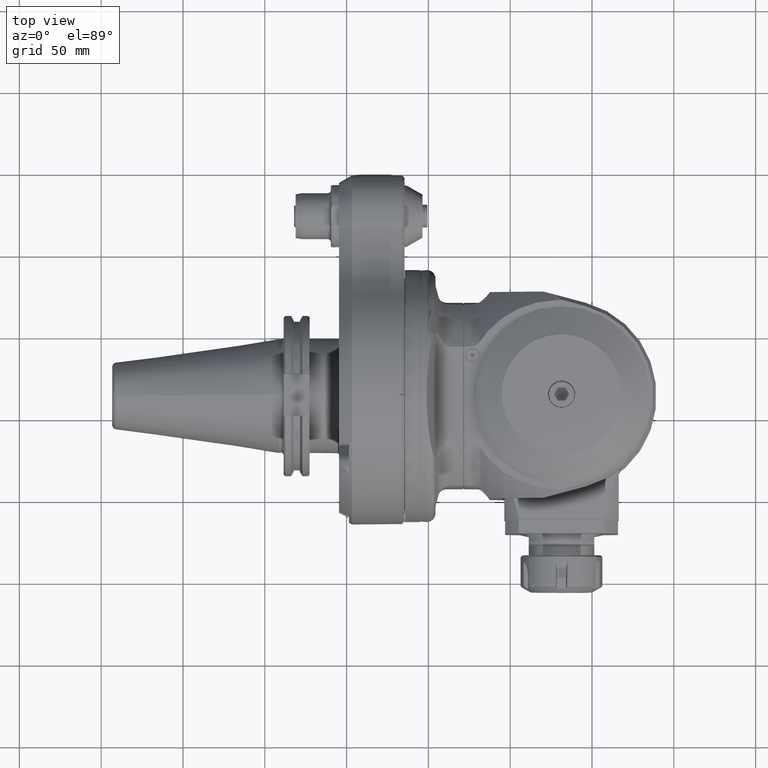
[diagram: clean part render]
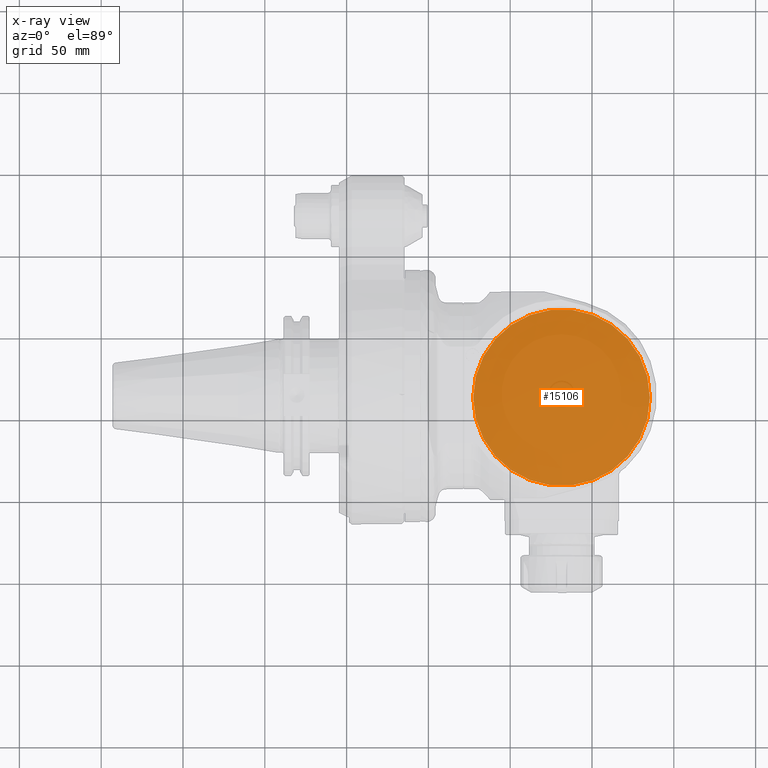
[diagram: x-ray — body ghosted, one internal face saturated and labeled with its STEP entity id]
A machine part, top view, then the same camera in x-ray: the body is ghosted and one INTERNAL B-rep face — a face not visible from any outside direction — is saturated and labeled: STEP entity #15106.
In plain terms, the highlighted planar face has unit normal (-0, 0, -1).
Its self-contained STEP definition (entity closure, byte-faithful):
#1091=PLANE('',#16673);
#1867=FACE_OUTER_BOUND('',#2828,.T.);
#2828=EDGE_LOOP('',(#12907));
#5823=CIRCLE('',#16661,54.);
#7055=VERTEX_POINT('',#39872);
#9081=EDGE_CURVE('',#7055,#7055,#5823,.T.);
#12907=ORIENTED_EDGE('',*,*,#9081,.T.);
#15106=ADVANCED_FACE('',(#1867),#1091,.T.);
#16661=AXIS2_PLACEMENT_3D('',#39873,#20261,#20262);
#16673=AXIS2_PLACEMENT_3D('',#39886,#20286,#20287);
#20261=DIRECTION('center_axis',(0.,1.,0.));
#20262=DIRECTION('ref_axis',(1.,0.,0.));
#20286=DIRECTION('center_axis',(0.,1.,0.));
#20287=DIRECTION('ref_axis',(-1.,0.,0.));
#39872=CARTESIAN_POINT('',(114.,55.5,2.08239474306E-14));
#39873=CARTESIAN_POINT('Origin',(60.,55.5,0.));
#39886=CARTESIAN_POINT('Origin',(63.88938336681,55.5,39.39634929082));